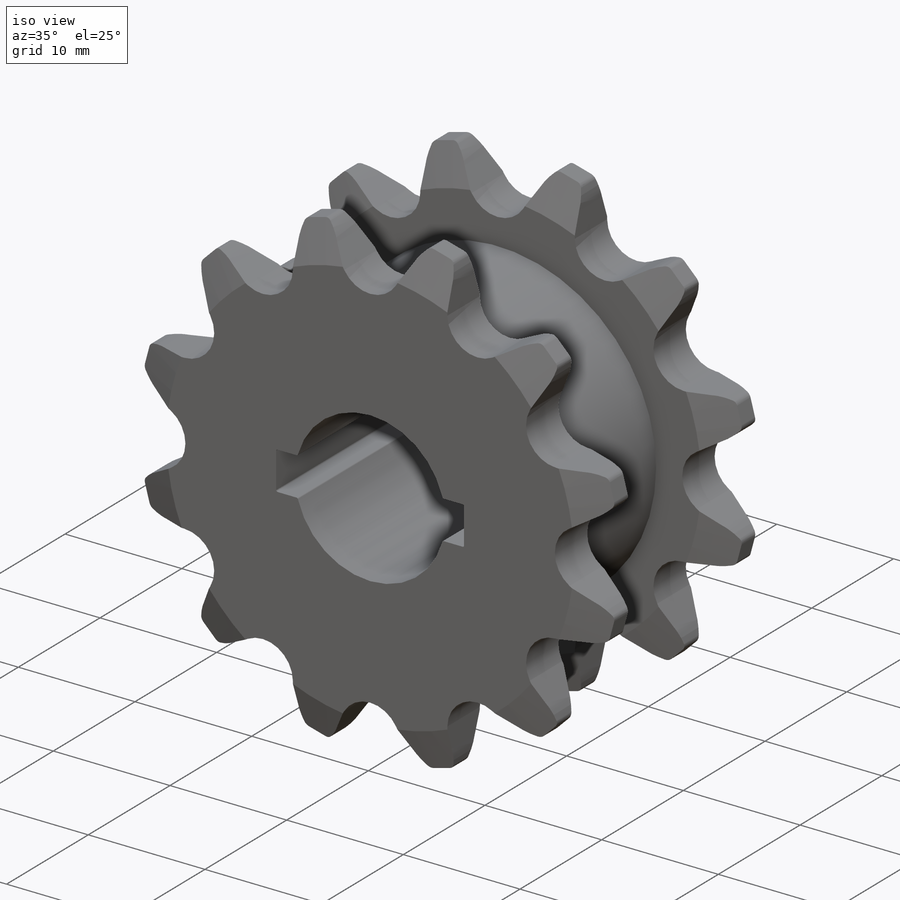
[diagram: iso view]
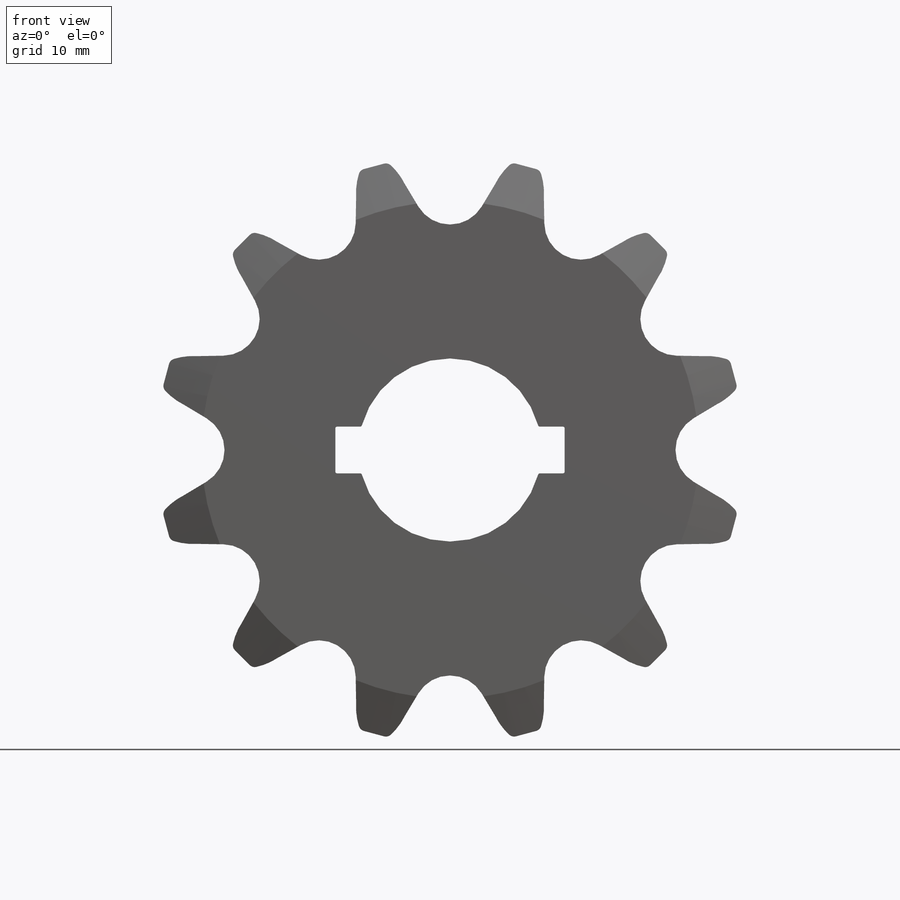
[diagram: front view]
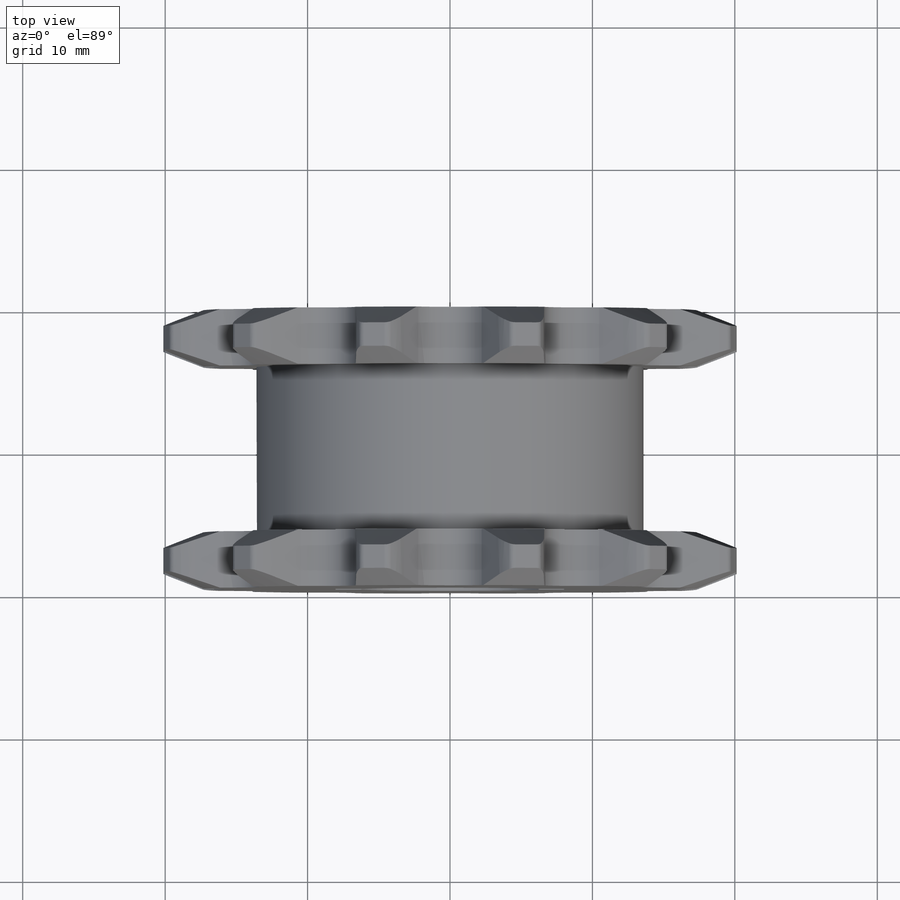
[diagram: top view]
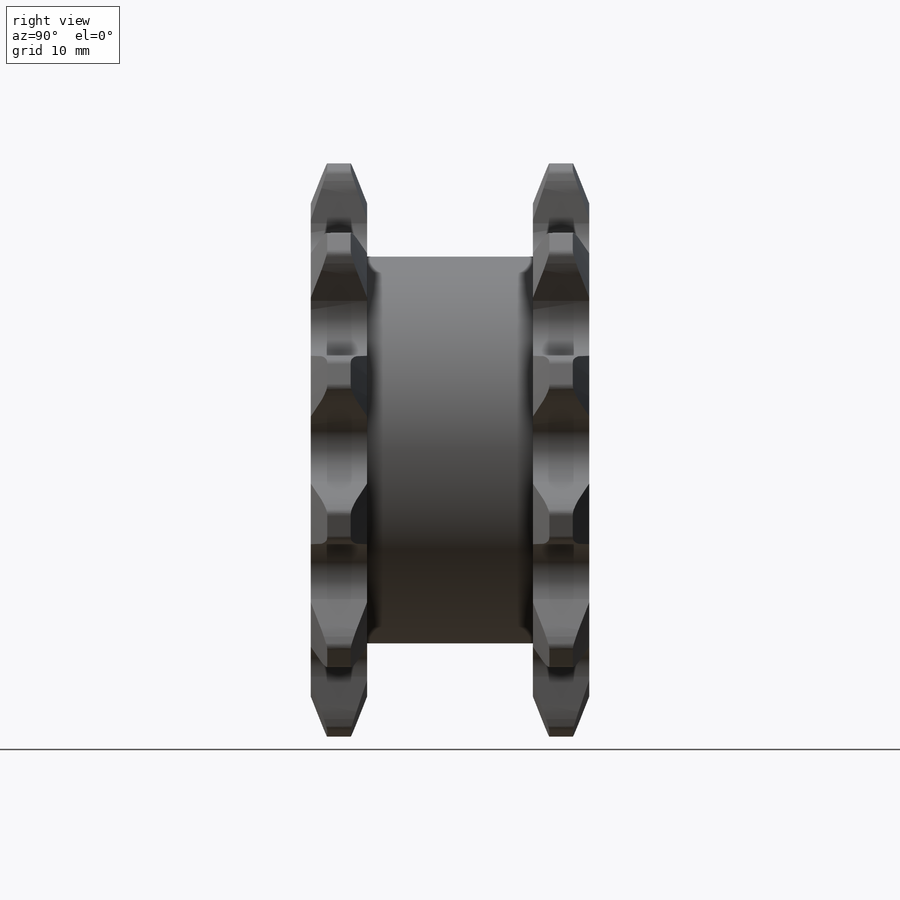
[diagram: right view]
SOLIDWORKS PART (.sldprt)
format: sldprt  version: not decoded by parser v0  size: 662,016 bytes
history: native  units: mm
features: sketch x5, plane x3, extrude x2, chamfer x2, fillet x2, material x1, mirror x1, cut_extrude x1, pattern_circular x1 (+14 scaffold rows collapsed)
feature tree (32):
  scaffold x14  (default folders/planes/origin — collapsed)
  material  "6061-T6 (SS)"
  plane  "Plane1"  Offset=5.8166mm
  sketch  "Sketch1"  dims[c1.D1=6.8778mm c1.D2=~41.26484mm c2.D1=12.8524mm c2.D3=3.2766mm c2.D4=3.2766mm c2.D5=16.1036mm]
  extrude  "Extrude1"  Depth=3.9624mm
  sketch  "Sketch2"  dims[D1=27.178mm D2=0.0mm]
  extrude  "Extrude2"  Depth=11.6332mm
  mirror  "Mirror5"
  sketch  "Sketch3"  dims[c1.D1=2.5908mm c1.D4=4.318mm c1.D6=4.318mm c1.D2=20.6766mm c1.D3=~8.732726mm c1.D5=~2.934109mm c2.D6=~1.894109mm c2.D7=~0.623037mm c2.D5=~5.205526mm c3.D6=6.4516mm c3.D7=~2.934109mm c3.D8=~1.894109mm c3.D9=4.445mm c3.D2=4.8006mm]
  cut_extrude  "Extrude3"  [1 undecoded]
  chamfer  "Chamfer1"  Distance=1.15824mm
  chamfer  "Chamfer2"  Distance=3.175mm
  pattern_circular  "CirPattern1"  Count=12 Angle=360deg
  fillet  "Fillet1"  Radius=0.127mm
  fillet  "Fillet2"  Radius=0.508mm ModelUUID=0mm UUID=0mm
  plane  "Plane2"  Offset=1.9812mm
  plane  "Plane3"  Offset=1.9812mm
  sketch  "Sketch4"
  sketch  "Sketch5"
decode coverage: 10 of 14 modeling features carry decoded parameters
note: ~ marks probable driven/reference dimensions
note: 1 parameter value undecoded
note: suppression state not decoded; provenance and decode notes live in map.json
